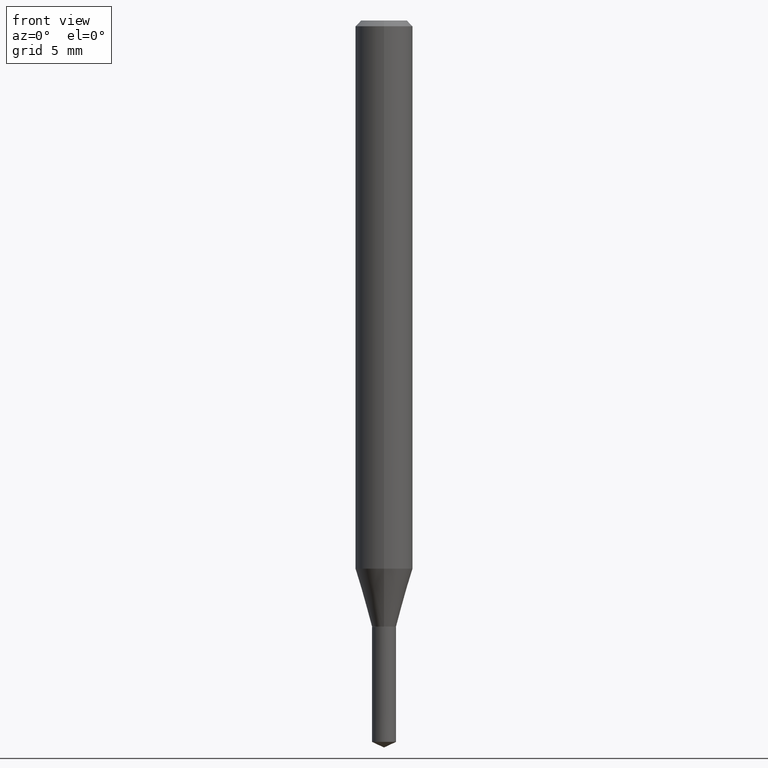
[diagram: clean part render]
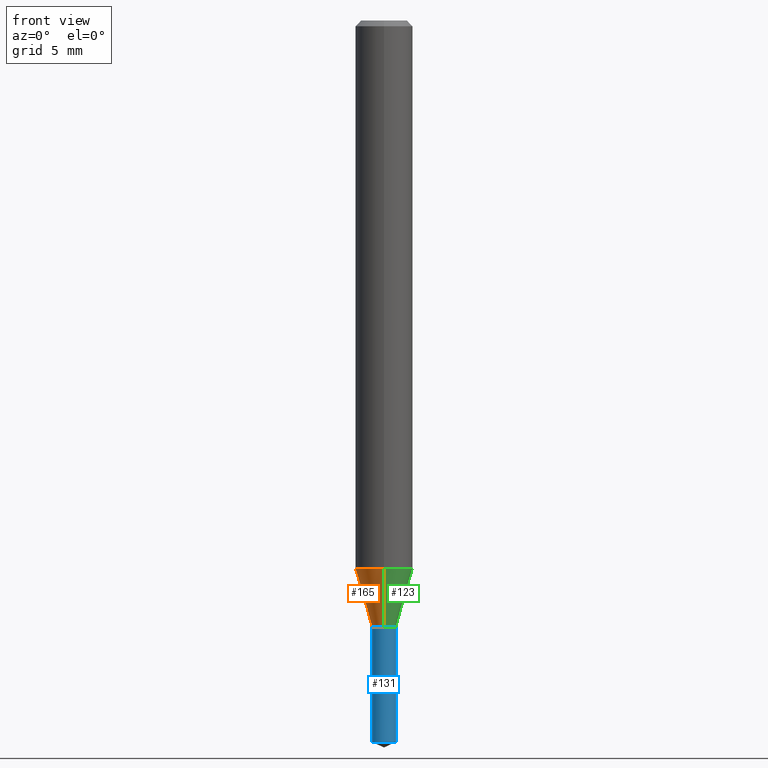
[diagram: same view with three faces highlighted in distinct colors, each labeled with its STEP entity id]
A machine part, front view with three faces highlighted in distinct colors.
Their STEP definitions:

[orange] entity #165 — the highlighted conical surface has half-angle 16.007 deg.
#101=EDGE_CURVE('',#133,#127,#238,.T.);
#109=VERTEX_POINT('',#246);
#127=VERTEX_POINT('',#268);
#133=VERTEX_POINT('',#275);
#145=EDGE_CURVE('',#177,#109,#289,.T.);
#165=ADVANCED_FACE('',(#309),#310,.T.);
#177=VERTEX_POINT('',#324);
#189=EDGE_CURVE('',#109,#133,#337,.T.);
#197=EDGE_CURVE('',#177,#127,#345,.T.);
#238=LINE('',#384,#385);
#246=CARTESIAN_POINT('',(1.83690953073357E-016,-1.5,-28.649));
#268=CARTESIAN_POINT('',(0.0,0.625,-31.6991339745962));
#275=CARTESIAN_POINT('',(0.0,1.5,-28.649));
#289=LINE('',#448,#449);
#309=FACE_OUTER_BOUND('',#478,.T.);
#310=CONICAL_SURFACE('',#479,1.0625,0.279370266681243);
#324=CARTESIAN_POINT('',(7.65378971138986E-017,-0.625,-31.6991339745962));
#337=CIRCLE('',#512,1.5);
#345=CIRCLE('',#520,0.625);
#384=CARTESIAN_POINT('',(-1.30114425093628E-016,1.0625,-30.1740669872981));
#385=VECTOR('',#558,1.0);
#448=CARTESIAN_POINT('',(1.30114425093628E-016,-1.0625,-30.1740669872981));
#449=VECTOR('',#624,1.0);
#478=EDGE_LOOP('',(#642,#643,#644,#645));
#479=AXIS2_PLACEMENT_3D('',#646,#647,#648);
#512=AXIS2_PLACEMENT_3D('',#678,#679,#680);
#520=AXIS2_PLACEMENT_3D('',#682,#683,#684);
#558=DIRECTION('',(3.37685673756822E-017,-0.275750385177082,-0.961229278098983));
#624=DIRECTION('',(3.37685673756822E-017,-0.275750385177082,0.961229278098983));
#642=ORIENTED_EDGE('',*,*,#101,.T.);
#643=ORIENTED_EDGE('',*,*,#197,.F.);
#644=ORIENTED_EDGE('',*,*,#145,.T.);
#645=ORIENTED_EDGE('',*,*,#189,.T.);
#646=CARTESIAN_POINT('',(0.0,0.0,-30.1740669872981));
#647=DIRECTION('',(-0.0,-0.0,1.0));
#648=DIRECTION('',(0.0,1.0,0.0));
#678=CARTESIAN_POINT('',(0.0,0.0,-28.649));
#679=DIRECTION('',(0.0,0.0,-1.0));
#680=DIRECTION('',(0.0,1.0,0.0));
#682=CARTESIAN_POINT('',(0.0,0.0,-31.6991339745962));
#683=DIRECTION('',(0.0,0.0,-1.0));
#684=DIRECTION('',(0.0,1.0,0.0));

[blue] entity #131 — the highlighted conical surface has half-angle 0.01 deg.
#93=EDGE_CURVE('',#113,#181,#228,.T.);
#105=EDGE_CURVE('',#181,#193,#242,.T.);
#113=VERTEX_POINT('',#251);
#115=EDGE_CURVE('',#157,#193,#253,.T.);
#131=ADVANCED_FACE('',(#272),#273,.T.);
#157=VERTEX_POINT('',#301);
#181=VERTEX_POINT('',#328);
#193=VERTEX_POINT('',#341);
#201=EDGE_CURVE('',#157,#113,#349,.T.);
#228=CIRCLE('',#372,0.626);
#242=LINE('',#391,#392);
#251=CARTESIAN_POINT('',(0.626,7.66603577492808E-017,-31.7));
#253=CIRCLE('',#404,0.625);
#272=FACE_OUTER_BOUND('',#429,.T.);
#273=CONICAL_SURFACE('',#430,0.6255,0.000166429289528634);
#301=CARTESIAN_POINT('',(0.625,7.65378971138986E-017,-37.70855771));
#328=CARTESIAN_POINT('',(-0.626,0.0,-31.7));
#341=CARTESIAN_POINT('',(-0.625,0.0,-37.70855771));
#349=LINE('',#526,#527);
#372=AXIS2_PLACEMENT_3D('',#538,#539,#540);
#391=CARTESIAN_POINT('',(-0.6255,-7.65991274315897E-017,-34.704278855));
#392=VECTOR('',#562,1.0);
#404=AXIS2_PLACEMENT_3D('',#571,#572,#573);
#429=EDGE_LOOP('',(#600,#601,#602,#603));
#430=AXIS2_PLACEMENT_3D('',#604,#605,#606);
#526=CARTESIAN_POINT('',(0.6255,7.65991274315897E-017,-34.704278855));
#527=VECTOR('',#688,1.0);
#538=CARTESIAN_POINT('',(0.0,0.0,-31.7));
#539=DIRECTION('',(0.0,0.0,-1.0));
#540=DIRECTION('',(-1.0,0.0,0.0));
#562=DIRECTION('',(0.000166429288760322,2.03810364478029E-020,-0.999999986150646));
#571=CARTESIAN_POINT('',(0.0,0.0,-37.70855771));
#572=DIRECTION('',(0.0,0.0,-1.0));
#573=DIRECTION('',(-1.0,0.0,0.0));
#600=ORIENTED_EDGE('',*,*,#105,.T.);
#601=ORIENTED_EDGE('',*,*,#115,.F.);
#602=ORIENTED_EDGE('',*,*,#201,.T.);
#603=ORIENTED_EDGE('',*,*,#93,.T.);
#604=CARTESIAN_POINT('',(0.0,0.0,-34.704278855));
#605=DIRECTION('',(-0.0,-0.0,1.0));
#606=DIRECTION('',(-1.0,0.0,0.0));
#688=DIRECTION('',(0.000166429288760322,2.03810364478029E-020,0.999999986150646));

[green] entity #123 — the highlighted conical surface has half-angle 16.007 deg.
#101=EDGE_CURVE('',#133,#127,#238,.T.);
#109=VERTEX_POINT('',#246);
#123=ADVANCED_FACE('',(#262),#263,.T.);
#127=VERTEX_POINT('',#268);
#133=VERTEX_POINT('',#275);
#145=EDGE_CURVE('',#177,#109,#289,.T.);
#169=EDGE_CURVE('',#127,#177,#314,.T.);
#177=VERTEX_POINT('',#324);
#199=EDGE_CURVE('',#133,#109,#347,.T.);
#238=LINE('',#384,#385);
#246=CARTESIAN_POINT('',(1.83690953073357E-016,-1.5,-28.649));
#262=FACE_OUTER_BOUND('',#417,.T.);
#263=CONICAL_SURFACE('',#418,1.0625,0.279370266681243);
#268=CARTESIAN_POINT('',(0.0,0.625,-31.6991339745962));
#275=CARTESIAN_POINT('',(0.0,1.5,-28.649));
#289=LINE('',#448,#449);
#314=CIRCLE('',#486,0.625);
#324=CARTESIAN_POINT('',(7.65378971138986E-017,-0.625,-31.6991339745962));
#347=CIRCLE('',#523,1.5);
#384=CARTESIAN_POINT('',(-1.30114425093628E-016,1.0625,-30.1740669872981));
#385=VECTOR('',#558,1.0);
#417=EDGE_LOOP('',(#585,#586,#587,#588));
#418=AXIS2_PLACEMENT_3D('',#589,#590,#591);
#448=CARTESIAN_POINT('',(1.30114425093628E-016,-1.0625,-30.1740669872981));
#449=VECTOR('',#624,1.0);
#486=AXIS2_PLACEMENT_3D('',#650,#651,#652);
#523=AXIS2_PLACEMENT_3D('',#685,#686,#687);
#558=DIRECTION('',(3.37685673756822E-017,-0.275750385177082,-0.961229278098983));
#585=ORIENTED_EDGE('',*,*,#101,.F.);
#586=ORIENTED_EDGE('',*,*,#199,.T.);
#587=ORIENTED_EDGE('',*,*,#145,.F.);
#588=ORIENTED_EDGE('',*,*,#169,.F.);
#589=CARTESIAN_POINT('',(0.0,0.0,-30.1740669872981));
#590=DIRECTION('',(-0.0,-0.0,1.0));
#591=DIRECTION('',(0.0,1.0,0.0));
#624=DIRECTION('',(3.37685673756822E-017,-0.275750385177082,0.961229278098983));
#650=CARTESIAN_POINT('',(0.0,0.0,-31.6991339745962));
#651=DIRECTION('',(0.0,0.0,-1.0));
#652=DIRECTION('',(0.0,1.0,0.0));
#685=CARTESIAN_POINT('',(0.0,0.0,-28.649));
#686=DIRECTION('',(0.0,0.0,-1.0));
#687=DIRECTION('',(0.0,1.0,0.0));